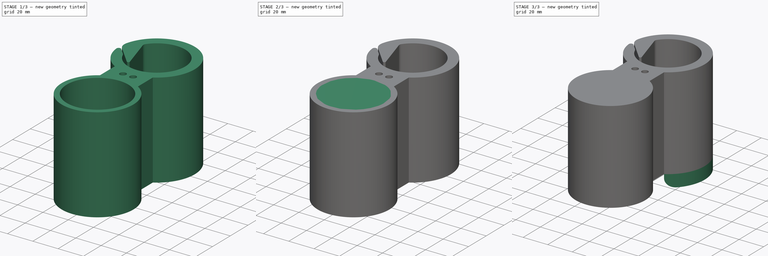
[diagram: build sequence overview — one tinted view per stage of 3, left to right]
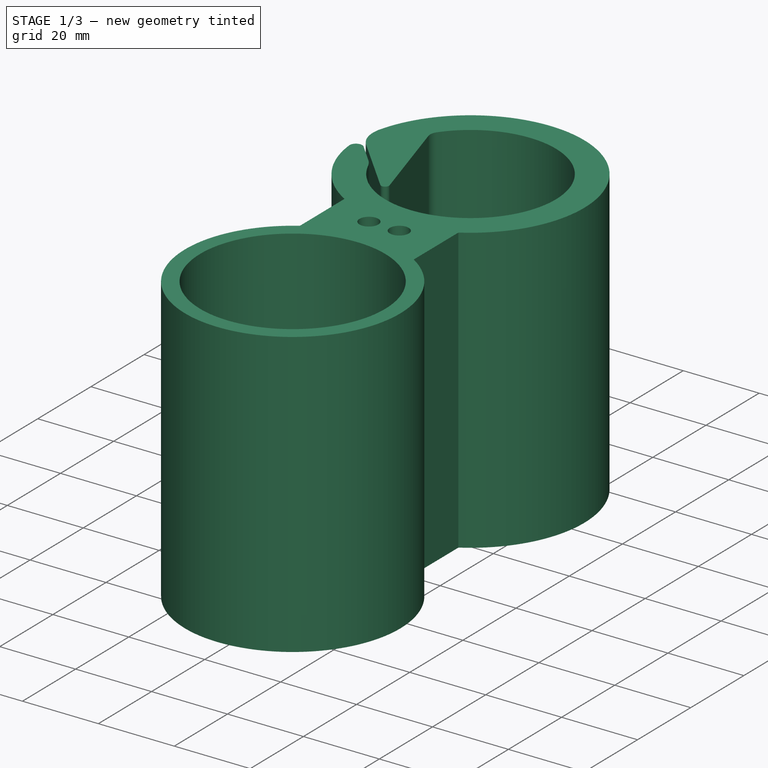
[diagram: stage 1 of 3 — iso view after this stage's code; geometry added in this stage tinted green]
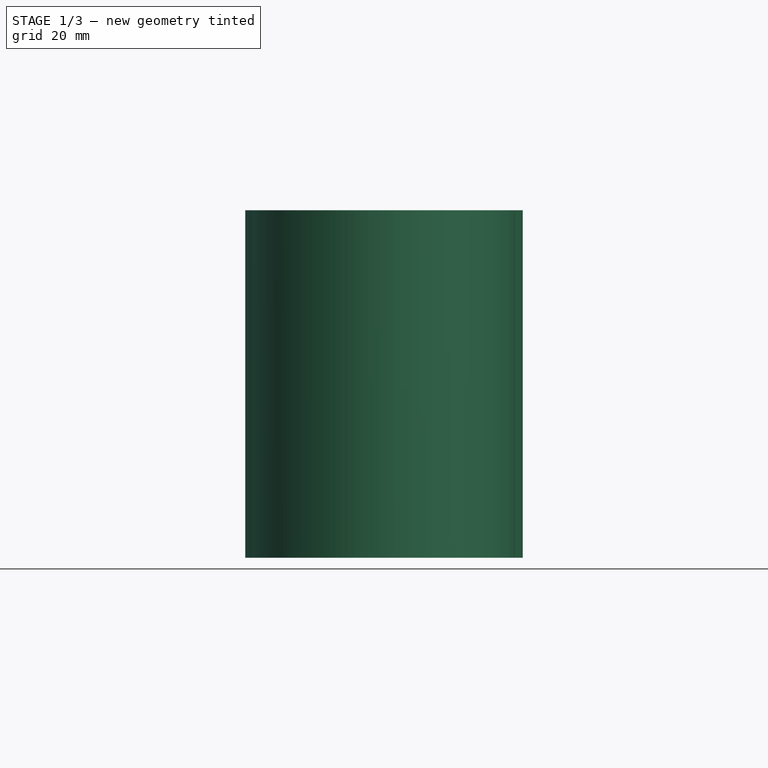
[diagram: stage 1 of 3 — front view after this stage's code; geometry added in this stage tinted green]
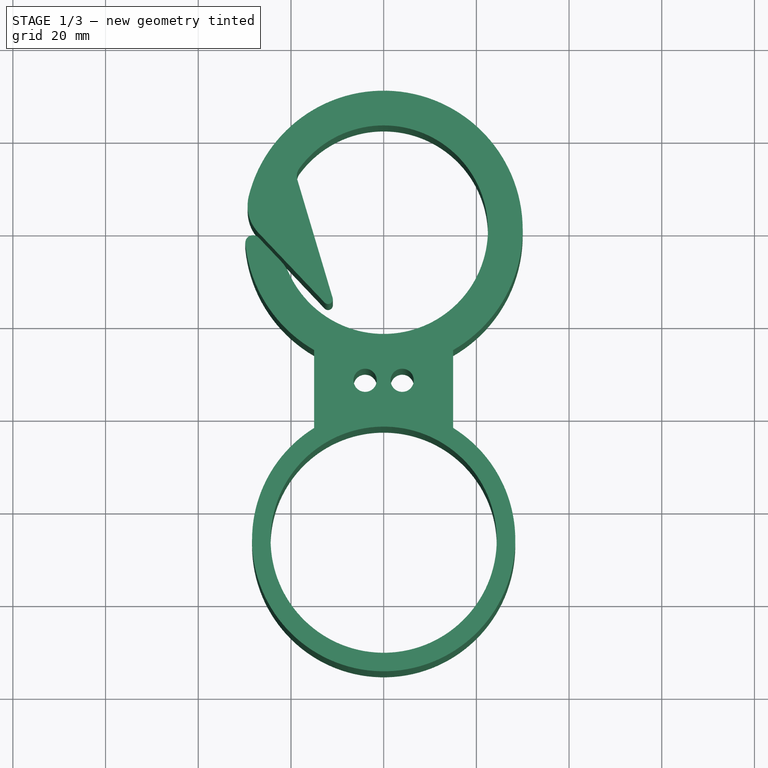
[diagram: stage 1 of 3 — top view after this stage's code; geometry added in this stage tinted green]
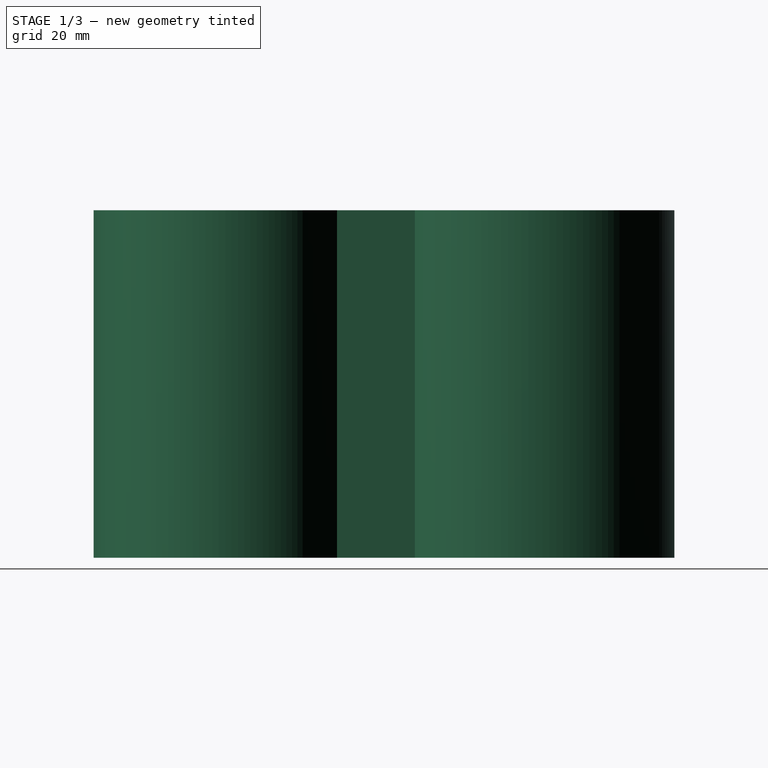
[diagram: stage 1 of 3 — right view after this stage's code; geometry added in this stage tinted green]
FCSTD DOCUMENT  (FreeCAD 0.22R38261 (Git))
Label: отцеп восьмерка
License: All rights reserved
LicenseURL: https://en.wikipedia.org/wiki/All_rights_reserved
objects: Sketcher::SketchObject×5, PartDesign::Pad×4, PartDesign::Plane×2, App::Part×1, PartDesign::Pocket×1, PartDesign::Fillet×1, PartDesign::Body×1
note: 26 computed .brp shape members not serialized (recipe doc carries the construction recipe); baked Part::Feature solids carry a one-line shape summary decoded from their .brp

FEATURE [Sketcher::SketchObject] Sketch  label="Otcep"
  AttachmentSupport = -> [XY_Plane001]
  FullyConstrained = false
  MapMode = 5
  sketch-geometry (11):
    g0: ArcOfCircle CenterX=0 CenterY=0 CenterZ=0 NormalX=0 NormalY=0 NormalZ=1 AngleXU=0 Radius=30 StartAngle=3.24229 EndAngle=9.17845
    g1: ArcOfCircle CenterX=0 CenterY=0 CenterZ=0 NormalX=0 NormalY=0 NormalZ=1 AngleXU=0 Radius=22.5 StartAngle=3.56645 EndAngle=8.7933
    g2: LineSegment StartX=-22.1738 StartY=-6.7846 StartZ=0 EndX=-26.9916 EndY=-1.7063 EndZ=0
    g3: LineSegment StartX=-26.9916 StartY=-0.706304 StartZ=0 EndX=-12.7398 EndY=-15.7288 EndZ=0
    g4: LineSegment StartX=-11.0087 StartY=-14.727 StartZ=0 EndX=-18.6044 EndY=10.7092 EndZ=0
    g5: ArcOfCircle CenterX=-11.9939 CenterY=-15.0212 CenterZ=0 NormalX=0 NormalY=0 NormalZ=1 AngleXU=0 Radius=1.02813 StartAngle=3.90067 EndAngle=6.57337
    g6: GeomPoint X=-9.77702 Y=-18.8518 Z=0
    g7: ArcOfCircle CenterX=-28.1961 CenterY=-2.84903 CenterZ=0 NormalX=0 NormalY=0 NormalZ=1 AngleXU=0 Radius=1.66033 StartAngle=0.759078 EndAngle=3.24229
    g8: ArcOfCircle CenterX=-20.7481 CenterY=5.21686 CenterZ=0 NormalX=0 NormalY=0 NormalZ=1 AngleXU=0 Radius=8.60608 StartAngle=2.89526 EndAngle=3.90067
    g9: ArcOfCircle CenterX=-15.791 CenterY=11.5493 CenterZ=0 NormalX=0 NormalY=0 NormalZ=1 AngleXU=0 Radius=2.93617 StartAngle=2.51011 EndAngle=3.43178
    g10: ArcOfCircle CenterX=-28.7167 CenterY=-12.9919 CenterZ=0 NormalX=0 NormalY=0 NormalZ=1 AngleXU=0 Radius=9.01889 StartAngle=0.42486 EndAngle=0.759078
  constraints (22):
    c: Coincident(g1,g-1)
    c: Coincident(g0,g1)
    c: Diameter(g0) = 60
    c: Diameter(g1) = 45  'rvnutr'
    c: PointOnObject(g6,g3)
    c: PointOnObject(g6,g4)
    c: Tangent(g3,g5) = -1.5708
    c: Tangent(g4,g5) = -1.5708
    c: Tangent(g2,g7) = -1.5708
    c: Tangent(g0,g7) = -1.5708
    c: Tangent(g3,g8) = -1.5708
    c: Tangent(g0,g8) = -1.5708
    c: Distance(g2,g3) = 1
    c: Parallel(g2,g3)
    c: Vertical(g2,g3)
    c: Tangent(g4,g9) = 1.5708
    c: Tangent(g1,g9) = -1.5708
    c: Tangent(g2,g10) = -1.5708
    c: Tangent(g1,g10) = 1.5708
    c: Distance(g3,g4) = 2
    c: Distance(g2) = 7
    c: Distance(g2,g3) = 13
FEATURE [App::Part] Part
  Origin = -> Origin
FEATURE [PartDesign::Pad] Pad
  Direction = (0,0,1)
  Length = 75
  Length2 = 10
  Profile = -> Sketch
  ReferenceAxis = -> Sketch [N_Axis]
  Suppressed = false
  Type = 0
FEATURE [PartDesign::Plane] DatumPlane
  AttachmentSupport = -> [Pad]
  Length = 71.8025
  MapMode = 5
  Placement = pos=(0,0,75) rot=(0,0,1;0rad)
  ResizeMode = 0
  Width = 71.8077
FEATURE [Sketcher::SketchObject] Sketch001  label="kolco"
  AttachmentSupport = -> [DatumPlane]
  ExternalGeometry = -> [Pad]
  FullyConstrained = true
  MapMode = 5
  Placement = pos=(0,0,75) rot=(0,0,1;0rad)
  expr: Constraints[24] = .Constraints.r1 + 8 mm
  sketch-geometry (21):
    g0: Circle CenterX=0 CenterY=-66.9 CenterZ=0 NormalX=0 NormalY=0 NormalZ=1 AngleXU=0 Radius=24.4
    g1: GeomPoint X=0 Y=-91.3 Z=0
    g2: GeomPoint X=-24.4 Y=-66.9 Z=0
    g3: GeomPoint X=24.4 Y=-66.9 Z=0
    g4: GeomPoint X=0 Y=-42.5 Z=0
    g5: GeomPoint X=0 Y=-22.5 Z=0
    g6: Circle CenterX=-4 CenterY=-32.5 CenterZ=0 NormalX=0 NormalY=0 NormalZ=1 AngleXU=0 Radius=2.5
    g7: Circle CenterX=4 CenterY=-32.5 CenterZ=0 NormalX=0 NormalY=0 NormalZ=1 AngleXU=0 Radius=2.5
    g8: GeomPoint X=0 Y=-32.5 Z=0
    g9: GeomPoint X=1.5 Y=-32.5 Z=0
    g10: GeomPoint X=-1.5 Y=-32.5 Z=0
    g11: Circle CenterX=0 CenterY=-66.9 CenterZ=0 NormalX=0 NormalY=0 NormalZ=1 AngleXU=0 Radius=28.4
    g12: GeomPoint X=-28.4 Y=-66.9 Z=0
    g13: GeomPoint X=28.4 Y=-66.9 Z=0
    g14: ArcOfCircle CenterX=1.5e-15 CenterY=-66.9 CenterZ=0 NormalX=0 NormalY=0 NormalZ=1 AngleXU=0 Radius=28.4 StartAngle=3.14159 EndAngle=6.28319
    g15: GeomPoint X=0 Y=-95.3 Z=0
    g16: LineSegment StartX=-15 StartY=-16.7705 StartZ=0 EndX=-15 EndY=-42.7844 EndZ=0
    g17: LineSegment StartX=15 StartY=-16.7705 StartZ=0 EndX=15 EndY=-42.7844 EndZ=0
    g18: ArcOfCircle CenterX=-2.51e-14 CenterY=7e-15 CenterZ=0 NormalX=0 NormalY=0 NormalZ=1 AngleXU=0 Radius=22.5 StartAngle=3.98266 EndAngle=5.44212
    g19: ArcOfCircle CenterX=1.5e-15 CenterY=-66.9 CenterZ=0 NormalX=0 NormalY=0 NormalZ=1 AngleXU=0 Radius=28.4 StartAngle=2.12724 EndAngle=3.14159
    g20: ArcOfCircle CenterX=0 CenterY=-66.9 CenterZ=0 NormalX=0 NormalY=0 NormalZ=1 AngleXU=0 Radius=28.4 StartAngle=0 EndAngle=1.01435
  constraints (50):
    c: Diameter(g0) = 48.8  'r1'
    c: PointOnObject(g0,g-2)
    c: PointOnObject(g1,g0)
    c: PointOnObject(g2,g0)
    c: PointOnObject(g3,g0)
    c: Horizontal(g3,g0)
    c: Horizontal(g2,g0)
    c: PointOnObject(g4,g0)
    c: PointOnObject(g4,g-2)
    c: PointOnObject(g5,g-2)
    c: DistanceY(g4,g5) = 20
    c: PointOnObject(g1,g-2)
    c: Diameter(g7) = 5
    c: Diameter(g6) = 5
    c: Symmetric(g4,g5,g8)
    c: Horizontal(g7,g8)
    c: Horizontal(g6,g8)
    c: PointOnObject(g9,g7)
    c: PointOnObject(g10,g6)
    c: Horizontal(g10,g8)
    c: Horizontal(g9,g8)
    c: DistanceX(g8,g9) = 1.5
    c: DistanceX(g10,g8) = 1.5
    c: Coincident(g11,g0)
    c: Diameter(g11) = 56.8
    c: PointOnObject(g12,g11)
    c: PointOnObject(g13,g11)
    c: Horizontal(g13,g0)
    c: Horizontal(g12,g0)
    c: Coincident(g14,g13)
    c: Coincident(g14,g12)
    c: PointOnObject(g15,g11)
    c: PointOnObject(g15,g-2)
    c: PointOnObject(g15,g14)
    c: PointOnObject(g16,g-3)
    c: Vertical(g16)
    c: PointOnObject(g17,g-3)
    c: Vertical(g17)
    c: PointOnObject(g5,g-3)
    c: Equal(g17,g16)
    c: DistanceX(g4,g17) = 15
    c: Coincident(g18,g16)
    c: Coincident(g18,g17)
    c: PointOnObject(g5,g18)
    c: Coincident(g19,g14)
    c: Coincident(g19,g12)
    c: Coincident(g20,g0)
    c: Coincident(g20,g13)
    c: Coincident(g16,g19)
    c: Coincident(g17,g20)
FEATURE [PartDesign::Pad] Pad001
  BaseFeature = -> Pad
  Direction = (0,0,1)
  Length = 75
  Length2 = 10
  Profile = -> Sketch001
  ReferenceAxis = -> Sketch001 [N_Axis]
  Reversed = true
  Suppressed = false
  Type = 0
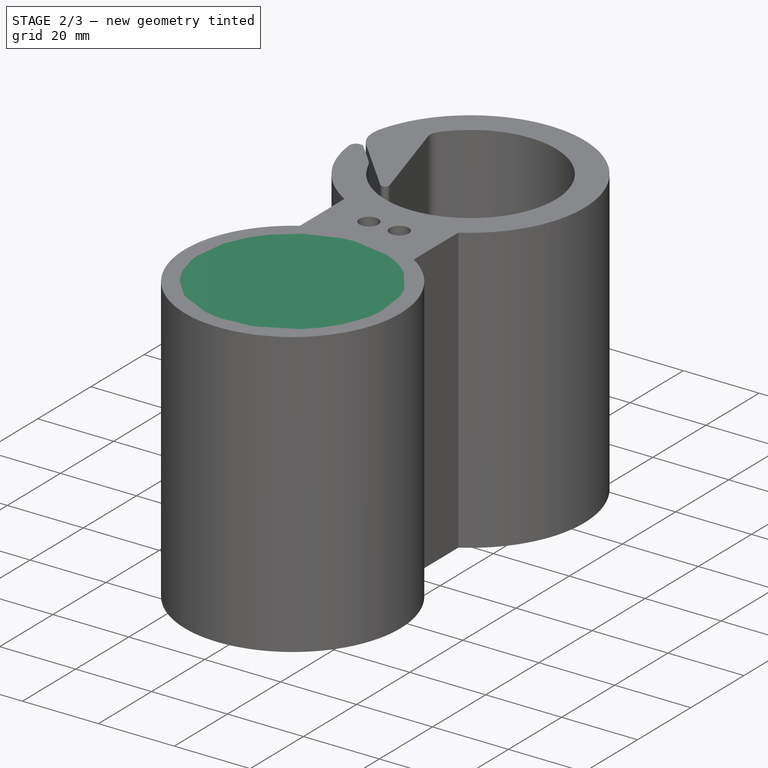
[diagram: stage 2 of 3 — iso view after this stage's code; geometry added in this stage tinted green]
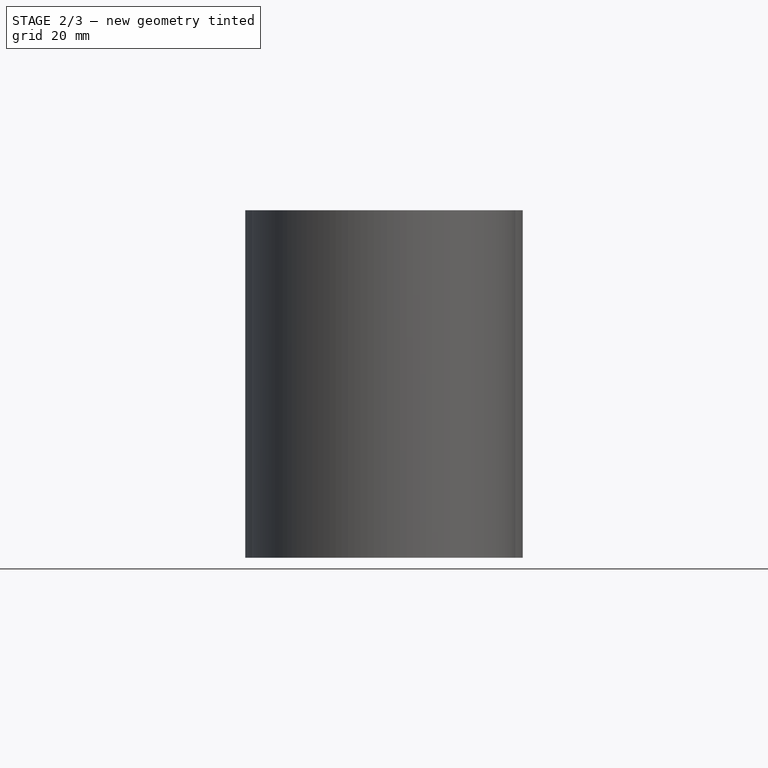
[diagram: stage 2 of 3 — front view after this stage's code; geometry added in this stage tinted green]
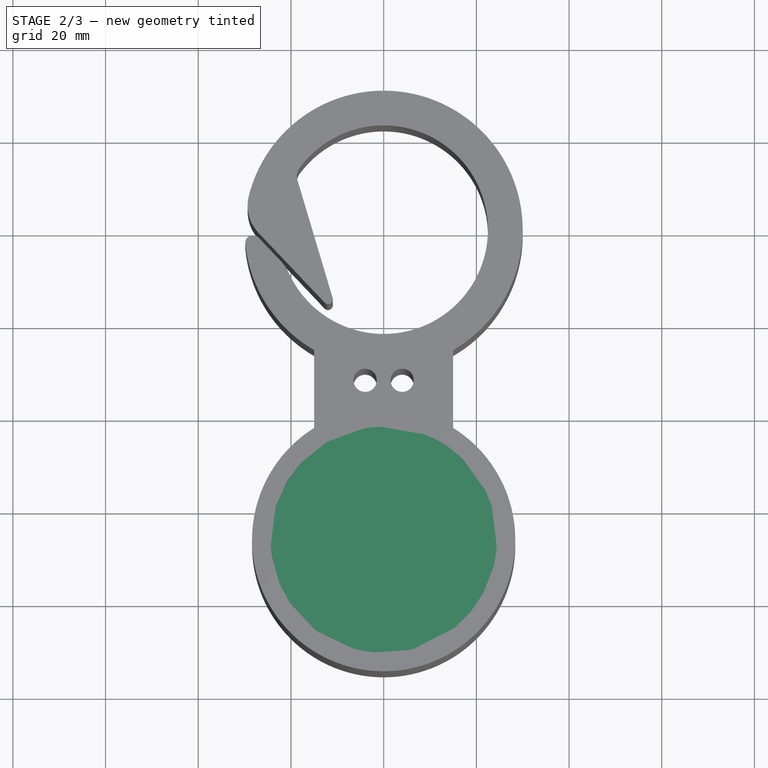
[diagram: stage 2 of 3 — top view after this stage's code; geometry added in this stage tinted green]
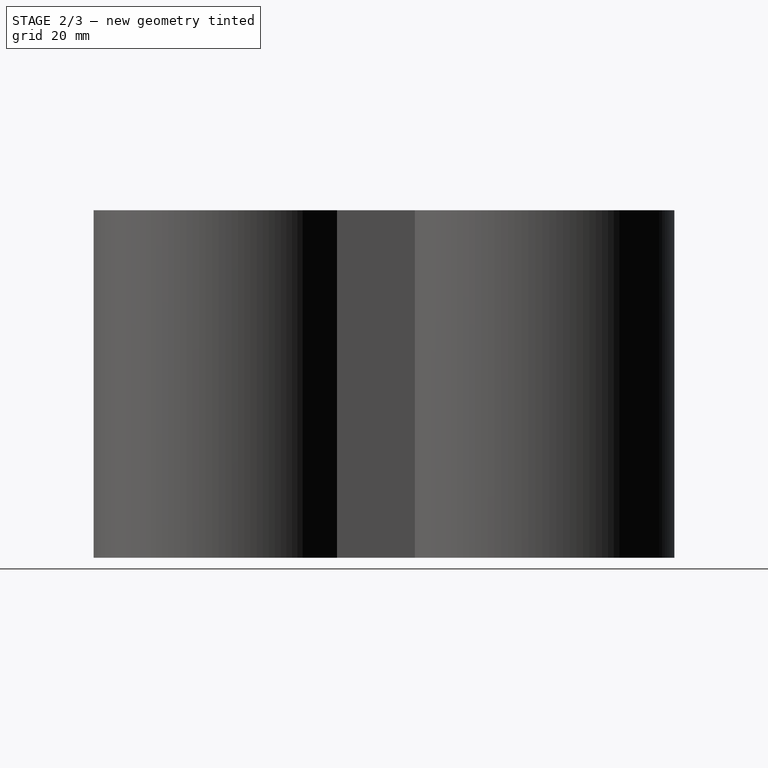
[diagram: stage 2 of 3 — right view after this stage's code; geometry added in this stage tinted green]
FEATURE [PartDesign::Plane] DatumPlane001
  AttachmentSupport = -> [Pad001]
  Length = 71.8025
  MapMode = 5
  Placement = pos=(0,0,0) rot=(1,0,0;3.14159rad)
  ResizeMode = 0
  Width = 71.8077
FEATURE [Sketcher::SketchObject] Sketch003
  AttachmentSupport = -> [DatumPlane]
  ExternalGeometry = -> [Pad001]
  FullyConstrained = true
  MapMode = 5
  Placement = pos=(0,0,75) rot=(0,0,1;0rad)
  sketch-geometry (1):
    g0: Circle CenterX=0 CenterY=-66.9 CenterZ=0 NormalX=0 NormalY=0 NormalZ=1 AngleXU=0 Radius=24.4
  constraints (2):
    c: Coincident(g0,g-3)
    c: Equal(g0,g-3)
FEATURE [PartDesign::Pad] Pad002
  BaseFeature = -> Pad001
  Direction = (0,0,1)
  Length = 5
  Length2 = 10
  Profile = -> Sketch003
  ReferenceAxis = -> Sketch003 [N_Axis]
  Reversed = true
  Suppressed = false
  Type = 0
FEATURE [Sketcher::SketchObject] Sketch004
  AttachmentSupport = -> [DatumPlane001]
  ExternalGeometry = -> [Pad001]
  FullyConstrained = true
  MapMode = 5
  Placement = pos=(0,0,0) rot=(1,0,0;3.14159rad)
  expr: Constraints[1] = <<kolco>>.Constraints.r1 + 2 mm
  sketch-geometry (1):
    g0: Circle CenterX=0 CenterY=66.9 CenterZ=0 NormalX=0 NormalY=0 NormalZ=1 AngleXU=0 Radius=25.4
  constraints (2):
    c: Coincident(g0,g-3)
    c: Diameter(g0) = 50.8
FEATURE [PartDesign::Pocket] Pocket
  BaseFeature = -> Pad002
  Direction = (0,0,1)
  Length = 3
  Length2 = 5
  Profile = -> Sketch004
  ReferenceAxis = -> Sketch004 [N_Axis]
  Suppressed = false
  Type = 0
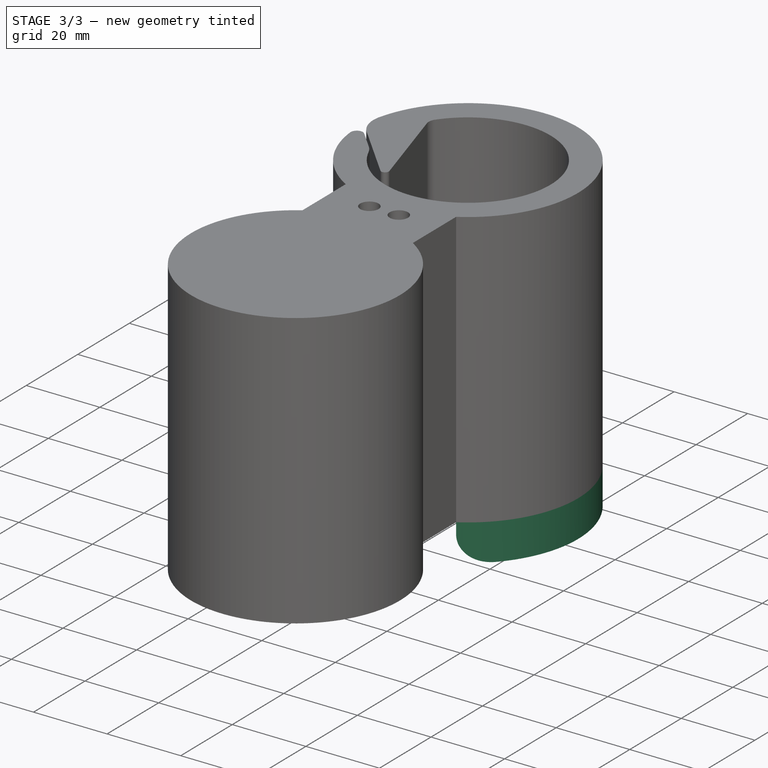
[diagram: stage 3 of 3 — iso view after this stage's code; geometry added in this stage tinted green]
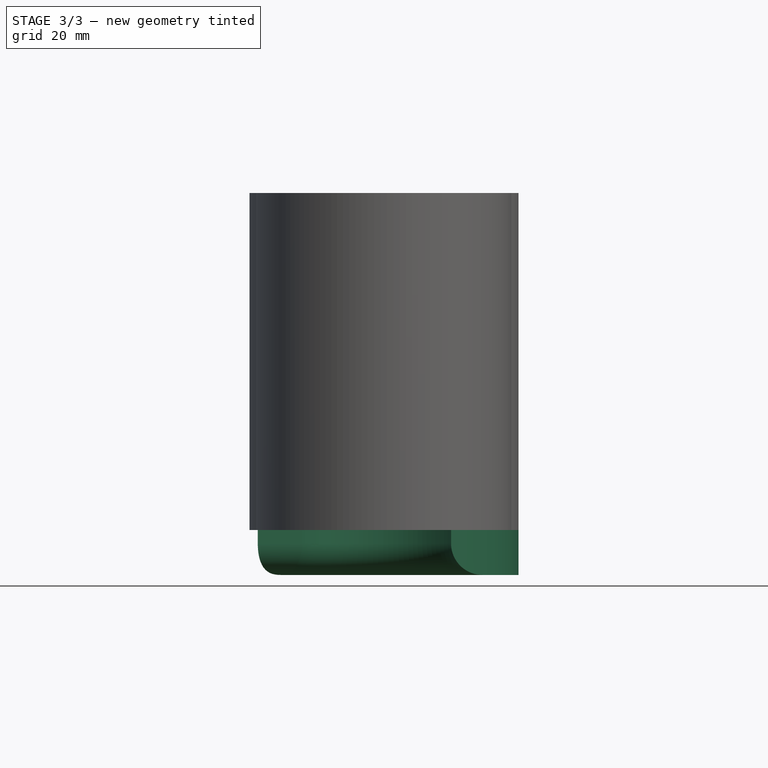
[diagram: stage 3 of 3 — front view after this stage's code; geometry added in this stage tinted green]
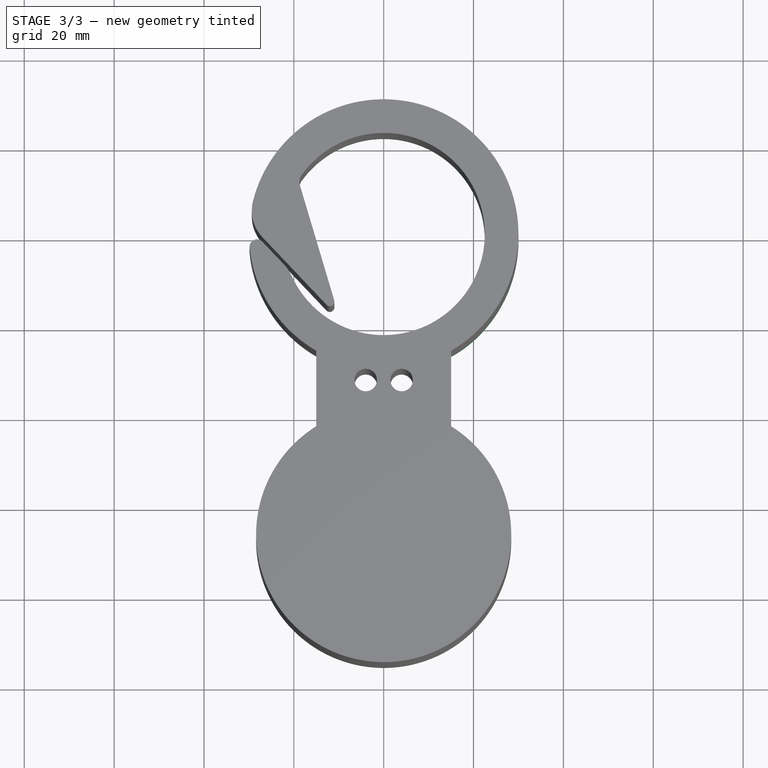
[diagram: stage 3 of 3 — top view after this stage's code; geometry added in this stage tinted green]
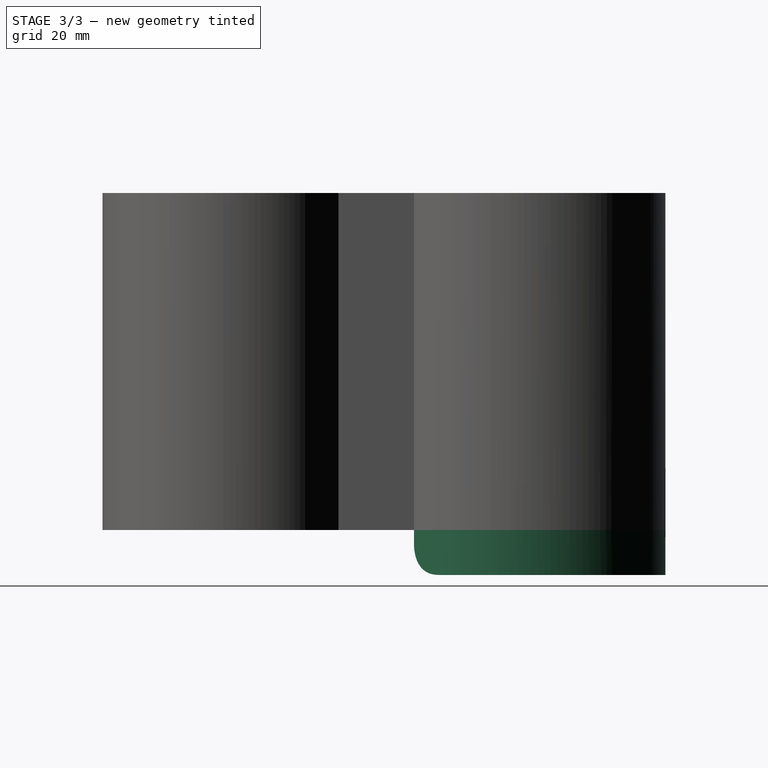
[diagram: stage 3 of 3 — right view after this stage's code; geometry added in this stage tinted green]
FEATURE [Sketcher::SketchObject] Sketch005
  AttachmentSupport = -> [DatumPlane001]
  ExternalGeometry = -> [Pocket]
  FullyConstrained = true
  MapMode = 5
  Placement = pos=(0,0,0) rot=(1,0,0;3.14159rad)
  sketch-geometry (5):
    g0: GeomPoint X=-28.0234 Y=-10.7092 Z=0
    g1: LineSegment StartX=-28.0234 StartY=-10.7092 StartZ=0 EndX=-18.161 EndY=-13.2827 EndZ=0
    g2: ArcOfCircle CenterX=0 CenterY=0 CenterZ=0 NormalX=0 NormalY=0 NormalZ=1 AngleXU=0 Radius=22.5 StartAngle=3.77307 EndAngle=7.12425
    g3: LineSegment StartX=15 StartY=16.7705 StartZ=0 EndX=15 EndY=25.9808 EndZ=0
    g4: ArcOfCircle CenterX=0 CenterY=-2.5e-15 CenterZ=0 NormalX=0 NormalY=0 NormalZ=1 AngleXU=0 Radius=30 StartAngle=3.50662 EndAngle=7.33038
  constraints (12):
    c: PointOnObject(g0,g-8)
    c: Coincident(g1,g0)
    c: Coincident(g2,g-1)
    c: Coincident(g3,g2)
    c: Coincident(g3,g-8)
    c: Coincident(g4,g3)
    c: Coincident(g4,g0)
    c: Vertical(g3)
    c: PointOnObject(g4,g-2)
    c: Horizontal(g0,g-3)
    c: Coincident(g1,g-4)
    c: Coincident(g2,g1)
FEATURE [PartDesign::Pad] Pad003
  BaseFeature = -> Pocket
  Direction = (0,0,-1)
  Length = 10
  Length2 = 10
  Profile = -> Sketch005
  ReferenceAxis = -> Sketch005 [N_Axis]
  Suppressed = false
  Type = 0
FEATURE [PartDesign::Fillet] Fillet
  Base = -> Pad003 [Edge56,Edge62,Edge31]
  BaseFeature = -> Pad003
  Radius = 7
  SupportTransform = false
  Suppressed = false
  UseAllEdges = false
FEATURE [PartDesign::Body] Body
  AllowCompound = false
  Group = -> [Sketch,Pad,DatumPlane,Sketch001,Pad001,DatumPlane001,Sketch003,Pad002,Sketch004,Pocket,Sketch005,Pad003,Fillet]
  Origin = -> Origin001
  Tip = -> Fillet
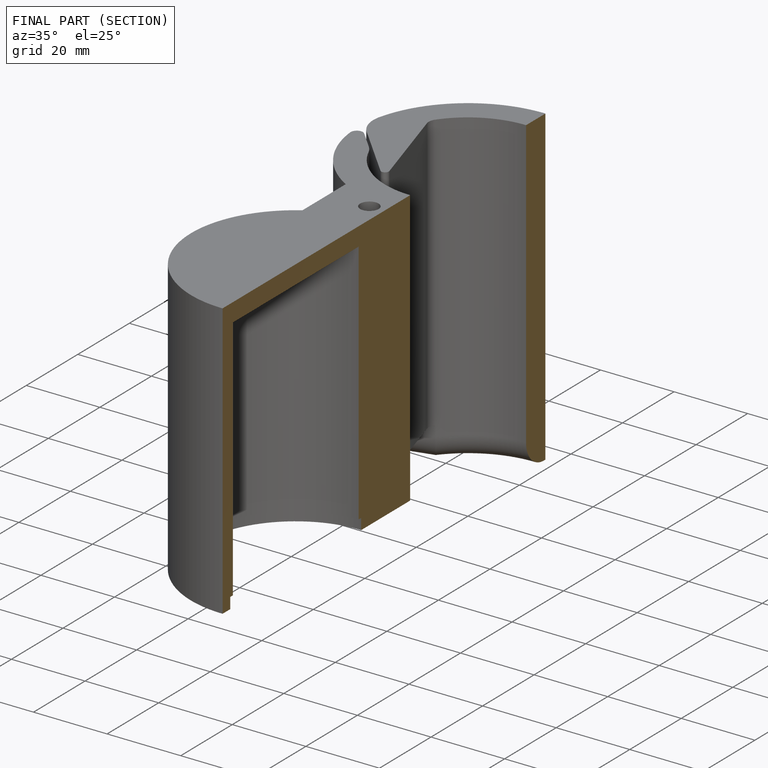
[diagram: finished part — half-section view (interior)]
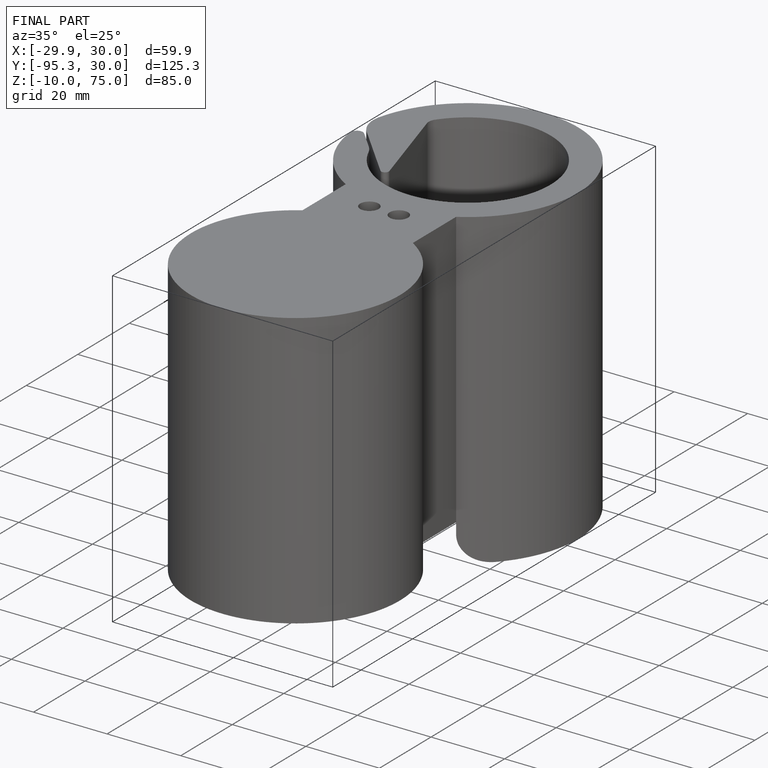
[diagram: finished part — iso view with bounding-box wireframe]
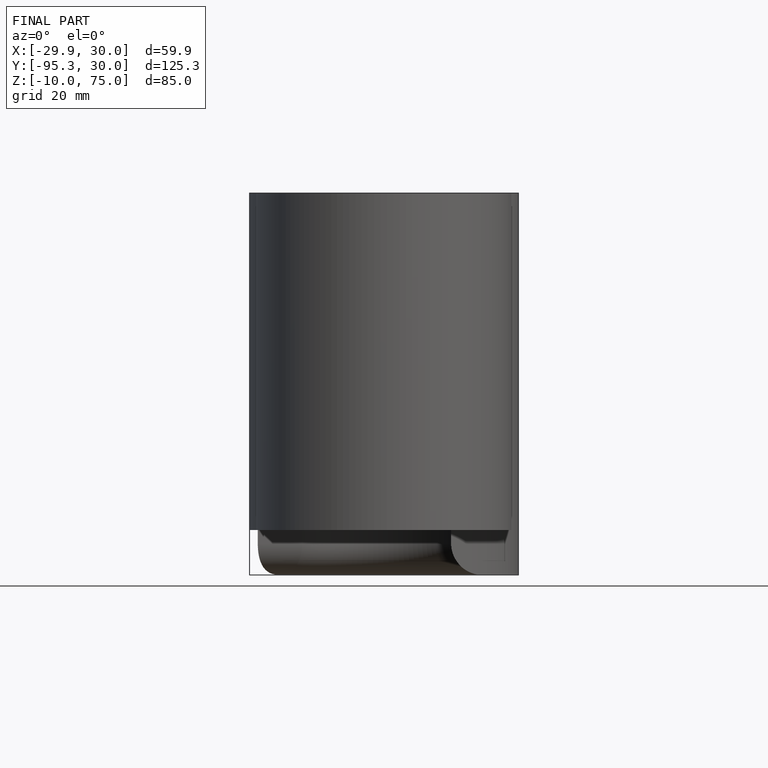
[diagram: finished part — front view with bounding-box wireframe]
